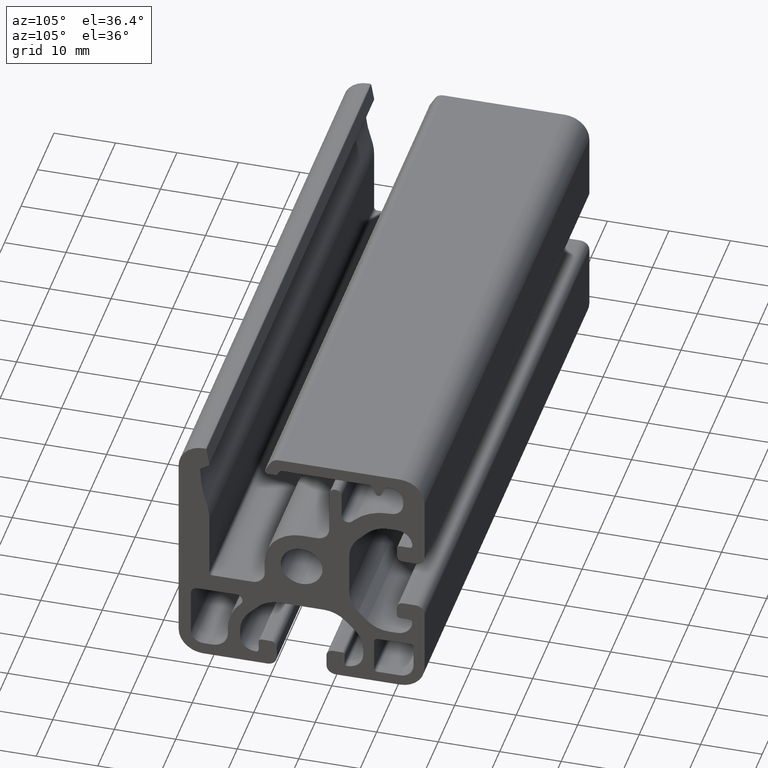
[diagram: clean part render]
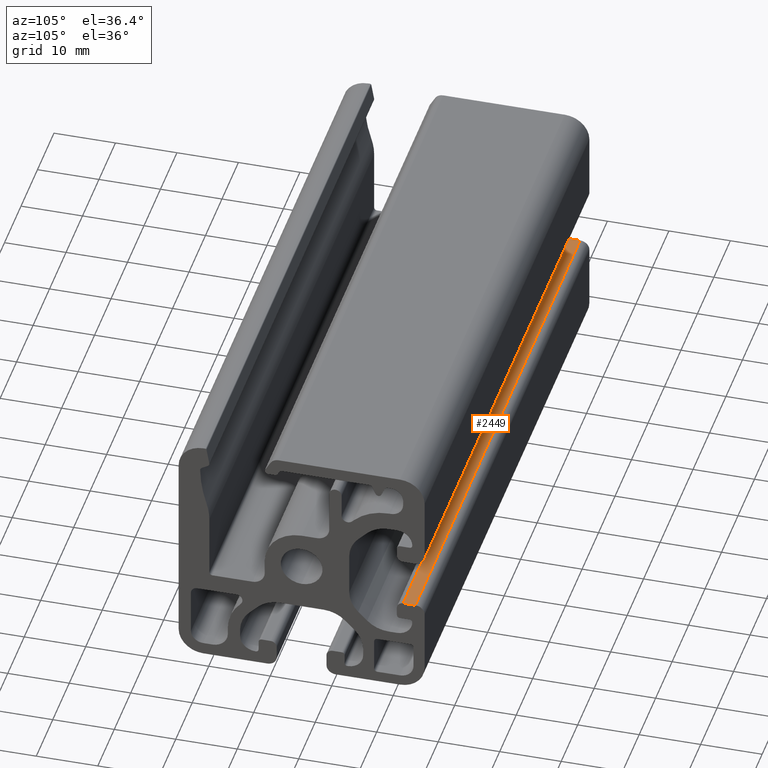
[diagram: same view with one face highlighted and labeled with its STEP entity id]
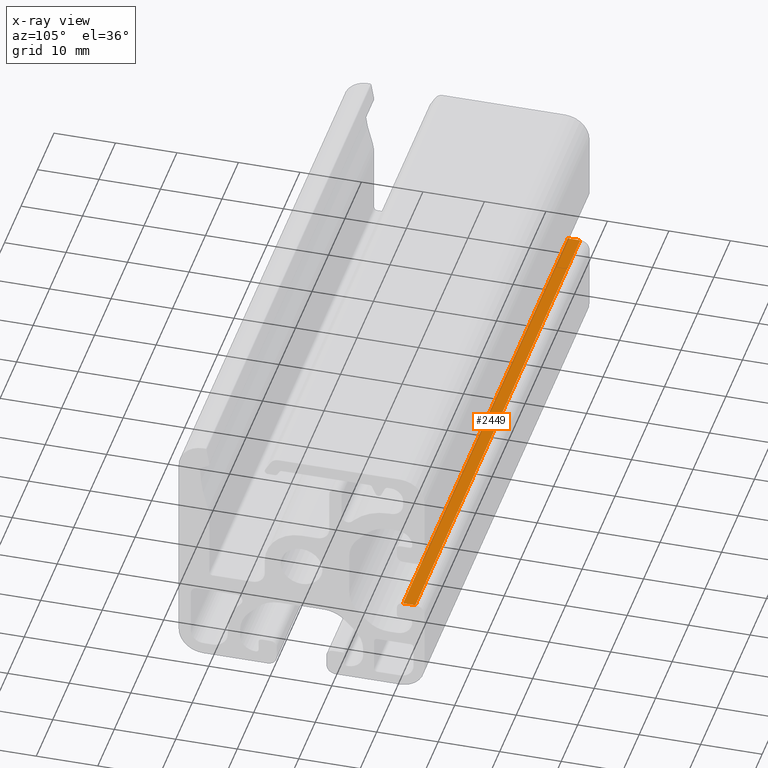
[diagram: x-ray of the same camera — body ghosted, the highlighted face saturated]
A machine part, auxiliary view. The second image highlights one B-rep face of the part: STEP entity #2449.
The next image is the same camera in x-ray: the body ghosted, the highlighted face saturated — about 9% of this face is hidden behind the body in this view.
In plain terms, the highlighted planar face has unit normal (0, 0, -1).
Its self-contained STEP definition (entity closure, byte-faithful):
#174 = VECTOR ( 'NONE', #1661, 1000.000000000000000 ) ;
#234 = DIRECTION ( 'NONE',  ( 0.0000000000000000000, 0.0000000000000000000, -1.000000000000000000 ) ) ;
#289 = DIRECTION ( 'NONE',  ( 0.0000000000000000000, -1.000000000000000000, 0.0000000000000000000 ) ) ;
#304 = ORIENTED_EDGE ( 'NONE', *, *, #2567, .F. ) ;
#527 = VECTOR ( 'NONE', #1185, 1000.000000000000000 ) ;
#584 = PLANE ( 'NONE',  #2326 ) ;
#704 = CARTESIAN_POINT ( 'NONE',  ( 59.18367346938774887, 73.39795897456458817, -4.049999790891517293 ) ) ;
#717 = VERTEX_POINT ( 'NONE', #3530 ) ;
#1054 = VERTEX_POINT ( 'NONE', #1471 ) ;
#1131 = LINE ( 'NONE', #704, #2211 ) ;
#1185 = DIRECTION ( 'NONE',  ( -1.000000000000000000, -0.0000000000000000000, -0.0000000000000000000 ) ) ;
#1192 = EDGE_CURVE ( 'NONE', #1054, #3774, #1461, .T. ) ;
#1214 = CARTESIAN_POINT ( 'NONE',  ( 59.18367346938774887, 71.39795897456460239, -4.049999790891517293 ) ) ;
#1371 = EDGE_CURVE ( 'NONE', #717, #1054, #2810, .T. ) ;
#1461 = LINE ( 'NONE', #1856, #2328 ) ;
#1471 = CARTESIAN_POINT ( 'NONE',  ( -40.81632653061225824, 73.39795897456458817, -4.049999790891517293 ) ) ;
#1484 = VERTEX_POINT ( 'NONE', #3427 ) ;
#1661 = DIRECTION ( 'NONE',  ( -1.000000000000000000, -0.0000000000000000000, -0.0000000000000000000 ) ) ;
#1856 = CARTESIAN_POINT ( 'NONE',  ( -40.81632653061225824, 73.39795897456458817, -4.049999790891517293 ) ) ;
#1991 = ORIENTED_EDGE ( 'NONE', *, *, #1192, .T. ) ;
#2184 = DIRECTION ( 'NONE',  ( 0.0000000000000000000, -1.000000000000000000, 0.0000000000000000000 ) ) ;
#2211 = VECTOR ( 'NONE', #289, 1000.000000000000000 ) ;
#2228 = ORIENTED_EDGE ( 'NONE', *, *, #1371, .T. ) ;
#2310 = ORIENTED_EDGE ( 'NONE', *, *, #2421, .F. ) ;
#2326 = AXIS2_PLACEMENT_3D ( 'NONE', #2523, #234, #2854 ) ;
#2328 = VECTOR ( 'NONE', #2184, 1000.000000000000000 ) ;
#2421 = EDGE_CURVE ( 'NONE', #1484, #3774, #4088, .T. ) ;
#2449 = ADVANCED_FACE ( 'NONE', ( #3415 ), #584, .F. ) ;
#2523 = CARTESIAN_POINT ( 'NONE',  ( 59.18367346938774887, 73.39795897456458817, -4.049999790891517293 ) ) ;
#2567 = EDGE_CURVE ( 'NONE', #717, #1484, #1131, .T. ) ;
#2810 = LINE ( 'NONE', #3975, #174 ) ;
#2854 = DIRECTION ( 'NONE',  ( -1.000000000000000000, 0.0000000000000000000, -0.0000000000000000000 ) ) ;
#3399 = EDGE_LOOP ( 'NONE', ( #1991, #2310, #304, #2228 ) ) ;
#3415 = FACE_OUTER_BOUND ( 'NONE', #3399, .T. ) ;
#3427 = CARTESIAN_POINT ( 'NONE',  ( 59.18367346938774887, 71.39795897456460239, -4.049999790891517293 ) ) ;
#3530 = CARTESIAN_POINT ( 'NONE',  ( 59.18367346938774887, 73.39795897456458817, -4.049999790891517293 ) ) ;
#3754 = CARTESIAN_POINT ( 'NONE',  ( -40.81632653061225824, 71.39795897456460239, -4.049999790891517293 ) ) ;
#3774 = VERTEX_POINT ( 'NONE', #3754 ) ;
#3975 = CARTESIAN_POINT ( 'NONE',  ( 59.18367346938774887, 73.39795897456458817, -4.049999790891517293 ) ) ;
#4088 = LINE ( 'NONE', #1214, #527 ) ;